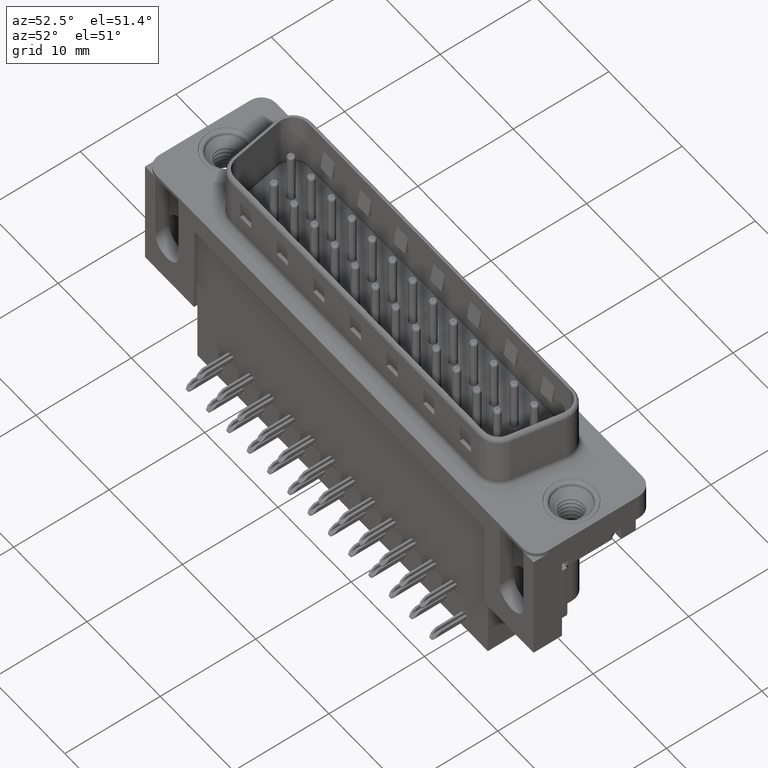
[diagram: clean part render]
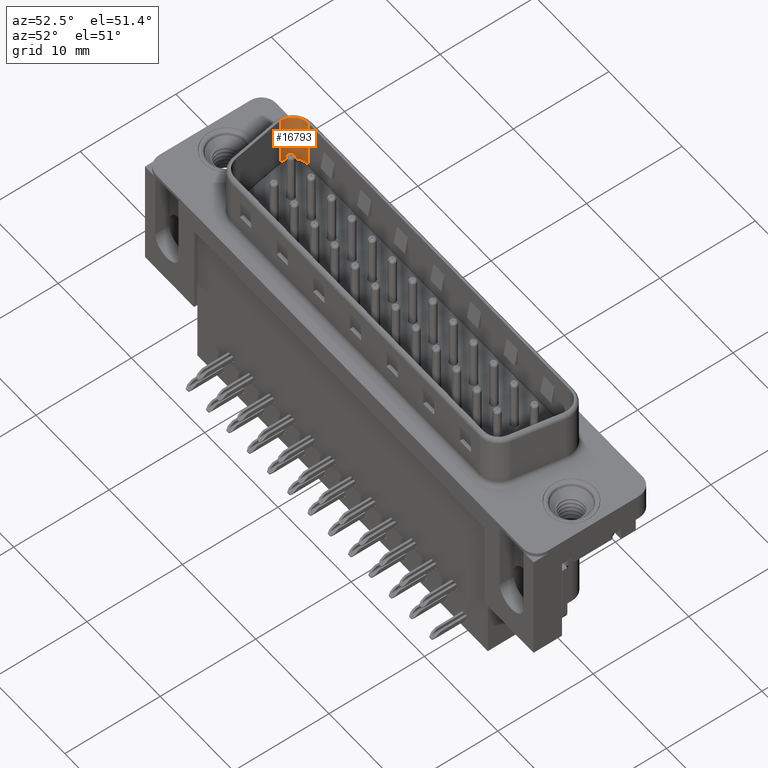
[diagram: same view with one face highlighted and labeled with its STEP entity id]
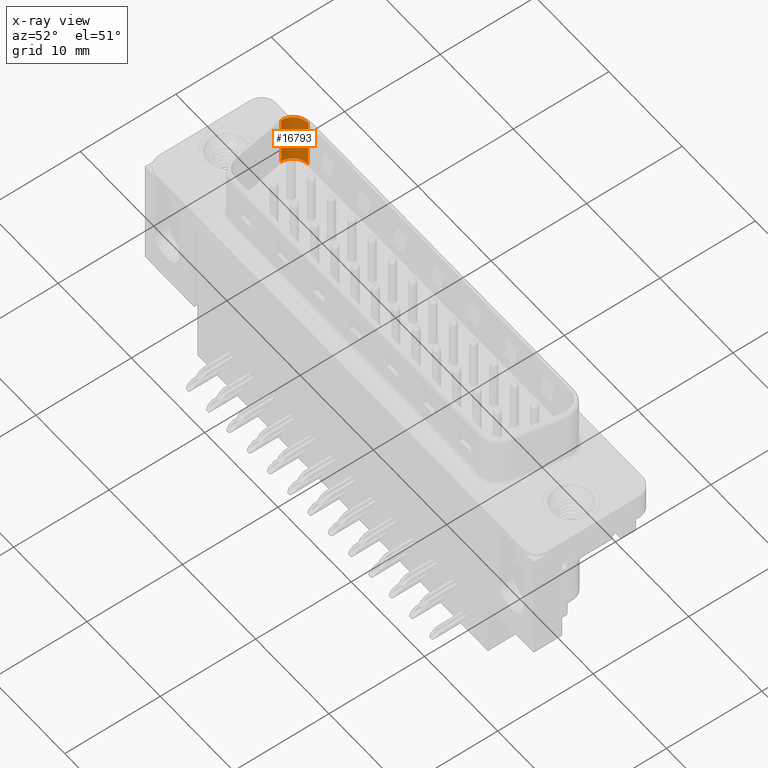
[diagram: x-ray of the same camera — body ghosted, the highlighted face saturated]
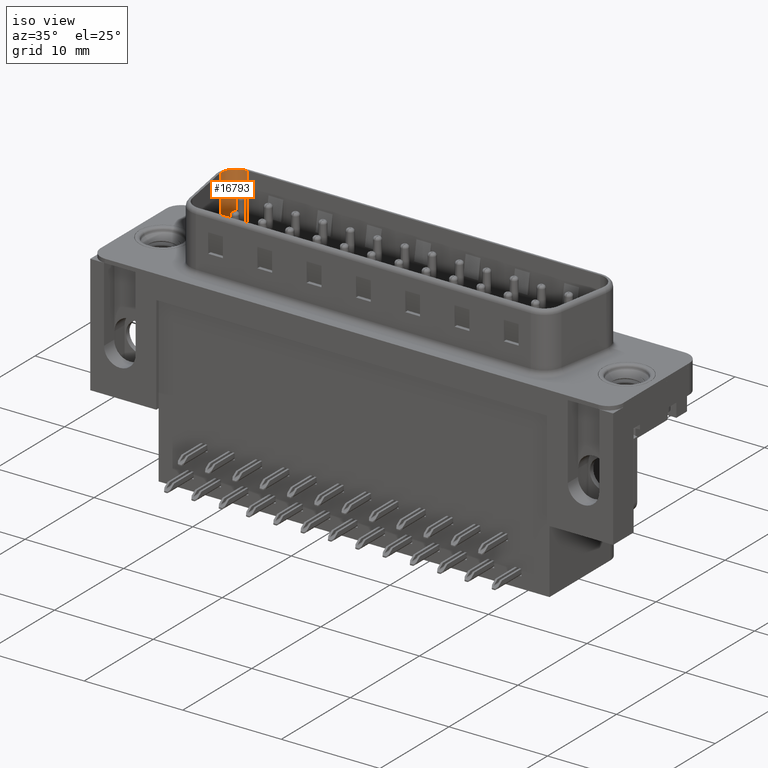
[diagram: same view with one face highlighted and labeled with its STEP entity id]
A machine part, auxiliary view. The second image highlights one B-rep face of the part: STEP entity #16793.
The next image is the same camera in x-ray: the body ghosted, the highlighted face saturated — about 0% of this face is hidden behind the body in this view.
A second angle (iso view) of the same face is appended — the face is thin or edge-on in the first view.
In plain terms, the highlighted cylindrical surface (edge-blend (fillet) strip) has radius 1.6 mm, axis along (-0, -0, -1).
Its self-contained STEP definition (entity closure, byte-faithful):
#160 = CARTESIAN_POINT ( 'NONE',  ( 5.640000000000003200, 4.179999999999992600, 0.8999999999999998000 ) ) ;
#179 = CARTESIAN_POINT ( 'NONE',  ( 4.040000000000003600, 2.579999999999993900, 0.8999999999999998000 ) ) ;
#211 = CARTESIAN_POINT ( 'NONE',  ( 5.640000000000003200, 2.579999999999993900, 0.8999999999999998000 ) ) ;
#433 = DIRECTION ( 'NONE',  ( -0.0000000000000000000, -0.0000000000000000000, -1.000000000000000000 ) ) ;
#1998 = DIRECTION ( 'NONE',  ( -1.000000000000000000, 0.0000000000000000000, 0.0000000000000000000 ) ) ;
#3965 = VERTEX_POINT ( 'NONE', #10341 ) ;
#4587 = VECTOR ( 'NONE', #7156, 1000.000000000000000 ) ;
#5373 = CARTESIAN_POINT ( 'NONE',  ( 5.640000000000003200, 4.179999999999992600, 6.500000000000000000 ) ) ;
#5865 = CYLINDRICAL_SURFACE ( 'NONE', #6208, 1.599999999999999000 ) ;
#5969 = EDGE_LOOP ( 'NONE', ( #6152, #10253, #21233, #19608 ) ) ;
#6152 = ORIENTED_EDGE ( 'NONE', *, *, #13315, .F. ) ;
#6208 = AXIS2_PLACEMENT_3D ( 'NONE', #7284, #21030, #12470 ) ;
#7156 = DIRECTION ( 'NONE',  ( -0.0000000000000000000, -0.0000000000000000000, -1.000000000000000000 ) ) ;
#7284 = CARTESIAN_POINT ( 'NONE',  ( 5.640000000000003200, 2.579999999999993900, 6.500000000000000000 ) ) ;
#7297 = CARTESIAN_POINT ( 'NONE',  ( 4.040000000000004500, 2.579999999999993900, 6.500000000000000000 ) ) ;
#8084 = AXIS2_PLACEMENT_3D ( 'NONE', #10981, #433, #12705 ) ;
#8986 = DIRECTION ( 'NONE',  ( -0.0000000000000000000, -0.0000000000000000000, -1.000000000000000000 ) ) ;
#10253 = ORIENTED_EDGE ( 'NONE', *, *, #13248, .T. ) ;
#10341 = CARTESIAN_POINT ( 'NONE',  ( 5.640000000000003200, 4.179999999999992600, 6.400000000000000400 ) ) ;
#10981 = CARTESIAN_POINT ( 'NONE',  ( 5.640000000000003200, 2.579999999999993900, 6.400000000000000400 ) ) ;
#11711 = CIRCLE ( 'NONE', #8084, 1.599999999999999000 ) ;
#12470 = DIRECTION ( 'NONE',  ( -1.000000000000000000, 0.0000000000000000000, 0.0000000000000000000 ) ) ;
#12486 = DIRECTION ( 'NONE',  ( 0.0000000000000000000, 0.0000000000000000000, 1.000000000000000000 ) ) ;
#12705 = DIRECTION ( 'NONE',  ( -1.000000000000000000, 0.0000000000000000000, 0.0000000000000000000 ) ) ;
#13184 = EDGE_CURVE ( 'NONE', #3965, #17519, #19447, .T. ) ;
#13219 = EDGE_CURVE ( 'NONE', #17519, #13949, #21844, .T. ) ;
#13248 = EDGE_CURVE ( 'NONE', #18096, #13949, #21318, .T. ) ;
#13315 = EDGE_CURVE ( 'NONE', #18096, #3965, #11711, .T. ) ;
#13949 = VERTEX_POINT ( 'NONE', #179 ) ;
#16724 = CARTESIAN_POINT ( 'NONE',  ( 4.040000000000003600, 2.579999999999993900, 6.400000000000000400 ) ) ;
#16793 = ADVANCED_FACE ( 'NONE', ( #20166 ), #5865, .F. ) ;
#17356 = VECTOR ( 'NONE', #8986, 1000.000000000000000 ) ;
#17519 = VERTEX_POINT ( 'NONE', #160 ) ;
#18096 = VERTEX_POINT ( 'NONE', #16724 ) ;
#19447 = LINE ( 'NONE', #5373, #4587 ) ;
#19608 = ORIENTED_EDGE ( 'NONE', *, *, #13184, .F. ) ;
#20166 = FACE_OUTER_BOUND ( 'NONE', #5969, .T. ) ;
#21030 = DIRECTION ( 'NONE',  ( -0.0000000000000000000, -0.0000000000000000000, -1.000000000000000000 ) ) ;
#21173 = AXIS2_PLACEMENT_3D ( 'NONE', #211, #12486, #1998 ) ;
#21233 = ORIENTED_EDGE ( 'NONE', *, *, #13219, .F. ) ;
#21318 = LINE ( 'NONE', #7297, #17356 ) ;
#21844 = CIRCLE ( 'NONE', #21173, 1.599999999999999000 ) ;